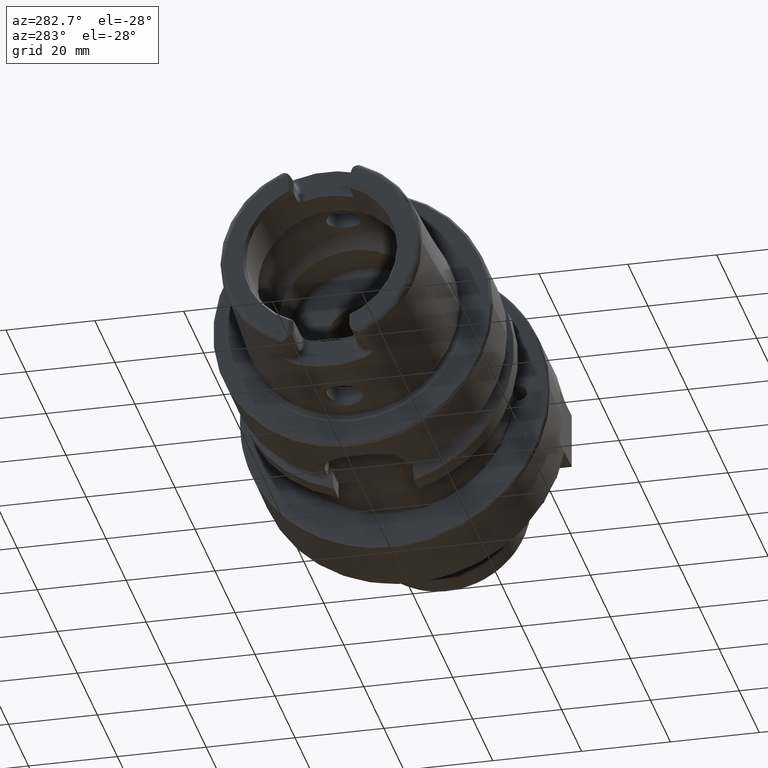
[diagram: clean part render]
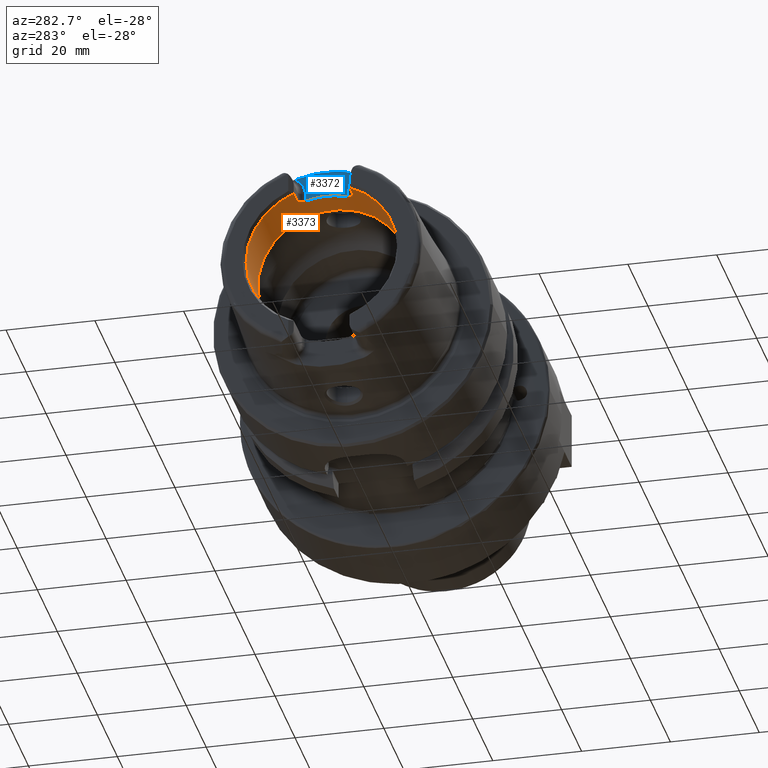
[diagram: same view with the hole feature highlighted: cylindrical wall and planar end face, labeled with their STEP entity ids]
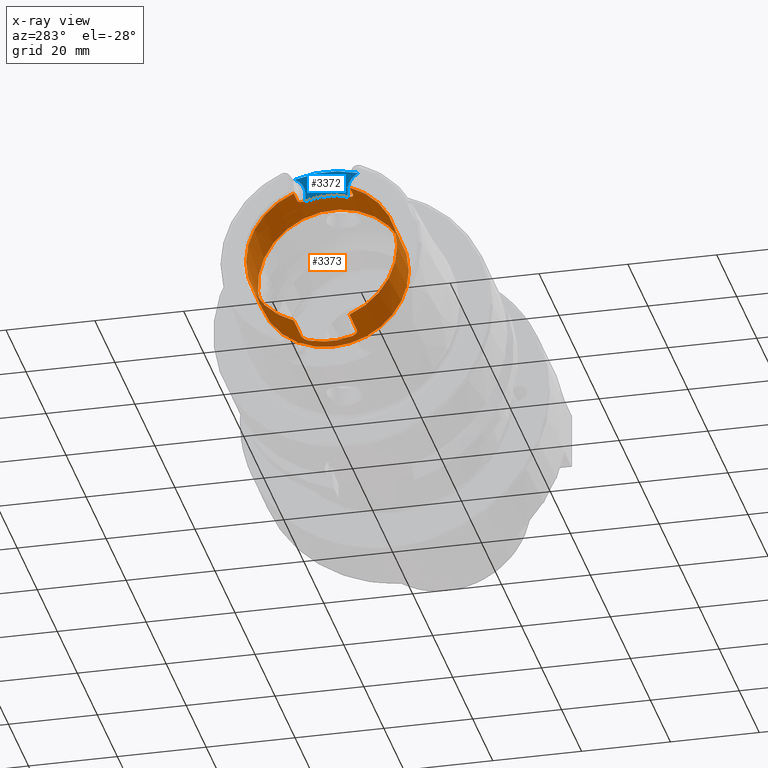
[diagram: x-ray of the same camera — body ghosted, the hole faces saturated]
A machine part, auxiliary view. The highlighted faces form one hole feature of diameter 34 mm: the cylindrical wall (entity #3373, orange) and its adjacent planar end face (entity #3372, blue) — they share a circular edge in the B-rep.
The next image is the same camera in x-ray (body ghosted, the hole faces saturated) — the bore reads through the body.
Wall:
#184=CYLINDRICAL_SURFACE('',#3816,17.);
#253=LINE('',#5592,#453);
#259=LINE('',#5608,#459);
#265=LINE('',#5663,#465);
#269=LINE('',#5729,#469);
#331=LINE('',#6836,#531);
#453=VECTOR('',#4250,10.);
#459=VECTOR('',#4264,10.);
#465=VECTOR('',#4286,10.);
#469=VECTOR('',#4310,10.);
#531=VECTOR('',#4630,17.);
#802=FACE_OUTER_BOUND('',#1011,.T.);
#1011=EDGE_LOOP('',(#2894,#2895,#2896,#2897,#2898,#2899,#2900,#2901,#2902,
#2903,#2904,#2905,#2906,#2907,#2908,#2909,#2910));
#1220=CIRCLE('',#3804,17.);
#1225=CIRCLE('',#3815,17.);
#1226=CIRCLE('',#3817,17.);
#1227=CIRCLE('',#3818,17.);
#1228=CIRCLE('',#3819,17.);
#1229=CIRCLE('',#3820,17.);
#1230=CIRCLE('',#3821,17.);
#1367=B_SPLINE_CURVE_WITH_KNOTS('',3,(#6753,#6754,#6755,#6756,#6757,#6758,
#6759,#6760,#6761,#6762),.UNSPECIFIED.,.F.,.F.,(4,2,2,2,4),(0.229569660485746,
0.289239803007022,0.348909945528297,0.405407845050218,0.46190574457214),
 .UNSPECIFIED.);
#1368=B_SPLINE_CURVE_WITH_KNOTS('',3,(#6771,#6772,#6773,#6774,#6775,#6776,
#6777,#6778,#6779,#6780),.UNSPECIFIED.,.F.,.F.,(4,2,2,2,4),(0.46190574457214,
0.519239917776744,0.576574090981348,0.635410522815223,0.694246954649097),
 .UNSPECIFIED.);
#1369=B_SPLINE_CURVE_WITH_KNOTS('',3,(#6789,#6790,#6791,#6792,#6793,#6794,
#6795,#6796,#6797,#6798),.UNSPECIFIED.,.F.,.F.,(4,2,2,2,4),(0.461905744572139,
0.518403644094061,0.574901543615982,0.634571686137257,0.694241828658533),
 .UNSPECIFIED.);
#1370=B_SPLINE_CURVE_WITH_KNOTS('',3,(#6812,#6813,#6814,#6815,#6816,#6817,
#6818,#6819,#6820,#6821),.UNSPECIFIED.,.F.,.F.,(4,2,2,2,4),(0.229569660485747,
0.289239803007022,0.348909945528297,0.405407845050218,0.46190574457214),
 .UNSPECIFIED.);
#1462=VERTEX_POINT('',#5545);
#1469=VERTEX_POINT('',#5591);
#1472=VERTEX_POINT('',#5598);
#1475=VERTEX_POINT('',#5606);
#1483=VERTEX_POINT('',#5653);
#1486=VERTEX_POINT('',#5661);
#1493=VERTEX_POINT('',#5696);
#1498=VERTEX_POINT('',#5728);
#1605=VERTEX_POINT('',#6751);
#1607=VERTEX_POINT('',#6770);
#1609=VERTEX_POINT('',#6788);
#1610=VERTEX_POINT('',#6805);
#1612=VERTEX_POINT('',#6832);
#1613=VERTEX_POINT('',#6833);
#1614=VERTEX_POINT('',#6835);
#1841=EDGE_CURVE('',#1469,#1462,#253,.T.);
#1849=EDGE_CURVE('',#1472,#1475,#259,.T.);
#1862=EDGE_CURVE('',#1483,#1486,#265,.T.);
#1876=EDGE_CURVE('',#1498,#1493,#269,.T.);
#2042=EDGE_CURVE('',#1605,#1486,#1367,.T.);
#2046=EDGE_CURVE('',#1498,#1607,#1368,.T.);
#2051=EDGE_CURVE('',#1469,#1609,#1369,.T.);
#2055=EDGE_CURVE('',#1610,#1609,#1220,.T.);
#2059=EDGE_CURVE('',#1610,#1475,#1370,.T.);
#2063=EDGE_CURVE('',#1605,#1607,#1225,.T.);
#2064=EDGE_CURVE('',#1612,#1613,#1226,.T.);
#2065=EDGE_CURVE('',#1612,#1614,#331,.T.);
#2066=EDGE_CURVE('',#1483,#1614,#1227,.T.);
#2067=EDGE_CURVE('',#1472,#1493,#1228,.T.);
#2068=EDGE_CURVE('',#1614,#1462,#1229,.T.);
#2069=EDGE_CURVE('',#1613,#1612,#1230,.T.);
#2894=ORIENTED_EDGE('',*,*,#2064,.F.);
#2895=ORIENTED_EDGE('',*,*,#2065,.T.);
#2896=ORIENTED_EDGE('',*,*,#2066,.F.);
#2897=ORIENTED_EDGE('',*,*,#1862,.T.);
#2898=ORIENTED_EDGE('',*,*,#2042,.F.);
#2899=ORIENTED_EDGE('',*,*,#2063,.T.);
#2900=ORIENTED_EDGE('',*,*,#2046,.F.);
#2901=ORIENTED_EDGE('',*,*,#1876,.T.);
#2902=ORIENTED_EDGE('',*,*,#2067,.F.);
#2903=ORIENTED_EDGE('',*,*,#1849,.T.);
#2904=ORIENTED_EDGE('',*,*,#2059,.F.);
#2905=ORIENTED_EDGE('',*,*,#2055,.T.);
#2906=ORIENTED_EDGE('',*,*,#2051,.F.);
#2907=ORIENTED_EDGE('',*,*,#1841,.T.);
#2908=ORIENTED_EDGE('',*,*,#2068,.F.);
#2909=ORIENTED_EDGE('',*,*,#2065,.F.);
#2910=ORIENTED_EDGE('',*,*,#2069,.F.);
#3373=ADVANCED_FACE('',(#802),#184,.F.);
#3804=AXIS2_PLACEMENT_3D('',#6806,#4600,#4601);
#3815=AXIS2_PLACEMENT_3D('',#6830,#4624,#4625);
#3816=AXIS2_PLACEMENT_3D('',#6831,#4626,#4627);
#3817=AXIS2_PLACEMENT_3D('',#6834,#4628,#4629);
#3818=AXIS2_PLACEMENT_3D('',#6837,#4631,#4632);
#3819=AXIS2_PLACEMENT_3D('',#6838,#4633,#4634);
#3820=AXIS2_PLACEMENT_3D('',#6839,#4635,#4636);
#3821=AXIS2_PLACEMENT_3D('',#6840,#4637,#4638);
#4250=DIRECTION('',(-1.,0.,0.));
#4264=DIRECTION('',(1.,0.,0.));
#4286=DIRECTION('',(1.,0.,0.));
#4310=DIRECTION('',(-1.,0.,0.));
#4600=DIRECTION('center_axis',(-1.,0.,0.));
#4601=DIRECTION('ref_axis',(0.,1.,0.));
#4624=DIRECTION('center_axis',(-1.,0.,0.));
#4625=DIRECTION('ref_axis',(0.,1.,0.));
#4626=DIRECTION('center_axis',(-1.,0.,0.));
#4627=DIRECTION('ref_axis',(0.,1.,0.));
#4628=DIRECTION('center_axis',(-1.,0.,0.));
#4629=DIRECTION('ref_axis',(0.,0.,1.));
#4630=DIRECTION('',(-1.,0.,0.));
#4631=DIRECTION('center_axis',(1.,0.,0.));
#4632=DIRECTION('ref_axis',(0.,-1.,0.));
#4633=DIRECTION('center_axis',(1.,0.,0.));
#4634=DIRECTION('ref_axis',(0.,-1.,0.));
#4635=DIRECTION('center_axis',(1.,0.,0.));
#4636=DIRECTION('ref_axis',(0.,-1.,0.));
#4637=DIRECTION('center_axis',(-1.,0.,0.));
#4638=DIRECTION('ref_axis',(0.,0.,1.));
#5545=CARTESIAN_POINT('',(-31.,-6.27,-15.8014904360317));
#5591=CARTESIAN_POINT('',(-23.5,-6.27,-15.8014904360317));
#5592=CARTESIAN_POINT('',(-25.6423502691896,-6.27,-15.8014904360317));
#5598=CARTESIAN_POINT('',(-31.,6.27,-15.8014904360317));
#5606=CARTESIAN_POINT('',(-23.5,6.27,-15.8014904360317));
#5608=CARTESIAN_POINT('',(-25.6423502691896,6.27,-15.8014904360317));
#5653=CARTESIAN_POINT('',(-31.,-6.27,15.8014904360317));
#5661=CARTESIAN_POINT('',(-27.5,-6.27,15.8014904360317));
#5663=CARTESIAN_POINT('',(-25.6423502691896,-6.27,15.8014904360317));
#5696=CARTESIAN_POINT('',(-31.,6.27,15.8014904360317));
#5728=CARTESIAN_POINT('',(-27.5,6.27,15.8014904360317));
#5729=CARTESIAN_POINT('',(-25.6423502691896,6.27,15.8014904360317));
#6751=CARTESIAN_POINT('',(-26.,-4.77,16.3170800083839));
#6753=CARTESIAN_POINT('Ctrl Pts',(-26.,-4.77,16.3170800083839));
#6754=CARTESIAN_POINT('Ctrl Pts',(-26.,-4.96091029208457,16.2612708750845));
#6755=CARTESIAN_POINT('Ctrl Pts',(-26.0385404635846,-5.16378617408596,16.1979610859593));
#6756=CARTESIAN_POINT('Ctrl Pts',(-26.1950909803916,-5.53690543536203,16.0742436586733));
#6757=CARTESIAN_POINT('Ctrl Pts',(-26.3130861154278,-5.70721093092864,16.01400454532));
#6758=CARTESIAN_POINT('Ctrl Pts',(-26.5811791540138,-5.96960590306613,15.9179857910505));
#6759=CARTESIAN_POINT('Ctrl Pts',(-26.7467155703026,-6.082078486584,15.8749745356799));
#6760=CARTESIAN_POINT('Ctrl Pts',(-27.1119229195206,-6.23232125085234,15.8165946761251));
#6761=CARTESIAN_POINT('Ctrl Pts',(-27.3116736682603,-6.27,15.8014904360317));
#6762=CARTESIAN_POINT('Ctrl Pts',(-27.5,-6.27,15.8014904360317));
#6770=CARTESIAN_POINT('',(-26.,4.77,16.3170800083839));
#6771=CARTESIAN_POINT('Ctrl Pts',(-27.5,6.27,15.8014904360317));
#6772=CARTESIAN_POINT('Ctrl Pts',(-27.308886089318,6.27,15.8014904360317));
#6773=CARTESIAN_POINT('Ctrl Pts',(-27.1064099842243,6.23121026569193,15.8170435837256));
#6774=CARTESIAN_POINT('Ctrl Pts',(-26.7371019784685,6.07691823919465,15.8769617281184));
#6775=CARTESIAN_POINT('Ctrl Pts',(-26.5701870418163,5.96150738537594,15.9210500039306));
#6776=CARTESIAN_POINT('Ctrl Pts',(-26.3050641818979,5.69638452545756,16.017853695422));
#6777=CARTESIAN_POINT('Ctrl Pts',(-26.1900212186221,5.52750941197086,16.0774506535614));
#6778=CARTESIAN_POINT('Ctrl Pts',(-26.0374824299787,5.15846789211413,16.1996292802954));
#6779=CARTESIAN_POINT('Ctrl Pts',(-26.,4.95824289522375,16.2620506397863));
#6780=CARTESIAN_POINT('Ctrl Pts',(-26.,4.77,16.3170800083839));
#6788=CARTESIAN_POINT('',(-22.,-4.77,-16.3170800083839));
#6789=CARTESIAN_POINT('Ctrl Pts',(-23.5,-6.27,-15.8014904360317));
#6790=CARTESIAN_POINT('Ctrl Pts',(-23.3116736682603,-6.27,-15.8014904360317));
#6791=CARTESIAN_POINT('Ctrl Pts',(-23.1119229195206,-6.23232125085234,-15.8165946761251));
#6792=CARTESIAN_POINT('Ctrl Pts',(-22.7467155703026,-6.082078486584,-15.8749745356799));
#6793=CARTESIAN_POINT('Ctrl Pts',(-22.5811791540138,-5.96960590306613,-15.9179857910505));
#6794=CARTESIAN_POINT('Ctrl Pts',(-22.3130861154278,-5.70721093092864,-16.01400454532));
#6795=CARTESIAN_POINT('Ctrl Pts',(-22.1950909803916,-5.53690543536204,-16.0742436586733));
#6796=CARTESIAN_POINT('Ctrl Pts',(-22.0385404635846,-5.16378617408596,-16.1979610859593));
#6797=CARTESIAN_POINT('Ctrl Pts',(-22.,-4.96091029208457,-16.2612708750845));
#6798=CARTESIAN_POINT('Ctrl Pts',(-22.,-4.77,-16.3170800083839));
#6805=CARTESIAN_POINT('',(-22.,4.77,-16.3170800083839));
#6806=CARTESIAN_POINT('Origin',(-22.,0.,0.));
#6812=CARTESIAN_POINT('Ctrl Pts',(-22.,4.77,-16.3170800083839));
#6813=CARTESIAN_POINT('Ctrl Pts',(-22.,4.96091029208457,-16.2612708750845));
#6814=CARTESIAN_POINT('Ctrl Pts',(-22.0385404635846,5.16378617408596,-16.1979610859593));
#6815=CARTESIAN_POINT('Ctrl Pts',(-22.1950909803916,5.53690543536204,-16.0742436586733));
#6816=CARTESIAN_POINT('Ctrl Pts',(-22.3130861154278,5.70721093092864,-16.01400454532));
#6817=CARTESIAN_POINT('Ctrl Pts',(-22.5811791540138,5.96960590306613,-15.9179857910505));
#6818=CARTESIAN_POINT('Ctrl Pts',(-22.7467155703026,6.082078486584,-15.8749745356799));
#6819=CARTESIAN_POINT('Ctrl Pts',(-23.1119229195206,6.23232125085234,-15.8165946761251));
#6820=CARTESIAN_POINT('Ctrl Pts',(-23.3116736682603,6.27,-15.8014904360317));
#6821=CARTESIAN_POINT('Ctrl Pts',(-23.5,6.27,-15.8014904360317));
#6830=CARTESIAN_POINT('Origin',(-26.,0.,0.));
#6831=CARTESIAN_POINT('Origin',(-25.6423502691896,0.,0.));
#6832=CARTESIAN_POINT('',(-19.2847005383793,-17.,2.0818995585505E-15));
#6833=CARTESIAN_POINT('',(-19.2847005383793,-2.0818995585505E-15,-17.));
#6834=CARTESIAN_POINT('Origin',(-19.2847005383793,0.,0.));
#6835=CARTESIAN_POINT('',(-31.,-17.,2.0818995585505E-15));
#6836=CARTESIAN_POINT('',(-25.6423502691896,-17.,2.0818995585505E-15));
#6837=CARTESIAN_POINT('Origin',(-31.,0.,0.));
#6838=CARTESIAN_POINT('Origin',(-31.,0.,0.));
#6839=CARTESIAN_POINT('Origin',(-31.,0.,0.));
#6840=CARTESIAN_POINT('Origin',(-19.2847005383793,0.,0.));
End face:
#325=LINE('',#6752,#525);
#326=LINE('',#6781,#526);
#525=VECTOR('',#4566,10.);
#526=VECTOR('',#4579,10.);
#639=PLANE('',#3814);
#801=FACE_OUTER_BOUND('',#1010,.T.);
#1010=EDGE_LOOP('',(#2888,#2889,#2890,#2891,#2892,#2893));
#1168=CIRCLE('',#3694,23.0180260521042);
#1213=CIRCLE('',#3790,4.38);
#1215=CIRCLE('',#3793,4.38);
#1225=CIRCLE('',#3815,17.);
#1510=VERTEX_POINT('',#5943);
#1511=VERTEX_POINT('',#5958);
#1604=VERTEX_POINT('',#6749);
#1605=VERTEX_POINT('',#6751);
#1606=VERTEX_POINT('',#6766);
#1607=VERTEX_POINT('',#6770);
#1894=EDGE_CURVE('',#1510,#1511,#1168,.T.);
#2041=EDGE_CURVE('',#1604,#1605,#325,.T.);
#2043=EDGE_CURVE('',#1511,#1604,#1213,.T.);
#2045=EDGE_CURVE('',#1606,#1510,#1215,.T.);
#2047=EDGE_CURVE('',#1607,#1606,#326,.T.);
#2063=EDGE_CURVE('',#1605,#1607,#1225,.T.);
#2888=ORIENTED_EDGE('',*,*,#2043,.F.);
#2889=ORIENTED_EDGE('',*,*,#1894,.F.);
#2890=ORIENTED_EDGE('',*,*,#2045,.F.);
#2891=ORIENTED_EDGE('',*,*,#2047,.F.);
#2892=ORIENTED_EDGE('',*,*,#2063,.F.);
#2893=ORIENTED_EDGE('',*,*,#2041,.F.);
#3372=ADVANCED_FACE('',(#801),#639,.T.);
#3694=AXIS2_PLACEMENT_3D('',#5959,#4324,#4325);
#3790=AXIS2_PLACEMENT_3D('',#6764,#4569,#4570);
#3793=AXIS2_PLACEMENT_3D('',#6768,#4575,#4576);
#3814=AXIS2_PLACEMENT_3D('',#6829,#4622,#4623);
#3815=AXIS2_PLACEMENT_3D('',#6830,#4624,#4625);
#4324=DIRECTION('center_axis',(1.,0.,0.));
#4325=DIRECTION('ref_axis',(0.,1.,0.));
#4566=DIRECTION('',(0.,-1.58830189502884E-16,-1.));
#4569=DIRECTION('center_axis',(-1.,0.,0.));
#4570=DIRECTION('ref_axis',(0.,0.601141749549969,0.799142413433302));
#4575=DIRECTION('center_axis',(-1.,0.,0.));
#4576=DIRECTION('ref_axis',(0.,-0.601141749549969,0.799142413433301));
#4579=DIRECTION('',(0.,-1.58830189502884E-16,1.));
#4622=DIRECTION('center_axis',(-1.,0.,0.));
#4623=DIRECTION('ref_axis',(0.,0.,1.));
#4624=DIRECTION('center_axis',(-1.,0.,0.));
#4625=DIRECTION('ref_axis',(0.,1.,0.));
#5943=CARTESIAN_POINT('',(-26.,7.14127219004964,21.8822246319466));
#5958=CARTESIAN_POINT('',(-26.,-7.14127219004964,21.8822246319466));
#5959=CARTESIAN_POINT('Origin',(-26.,0.,0.));
#6749=CARTESIAN_POINT('',(-26.,-4.77,17.99));
#6751=CARTESIAN_POINT('',(-26.,-4.77,16.3170800083839));
#6752=CARTESIAN_POINT('',(-26.,-4.77,14.75));
#6764=CARTESIAN_POINT('Origin',(-26.,-9.15,17.99));
#6766=CARTESIAN_POINT('',(-26.,4.77,17.99));
#6768=CARTESIAN_POINT('Origin',(-26.,9.15,17.99));
#6770=CARTESIAN_POINT('',(-26.,4.77,16.3170800083839));
#6781=CARTESIAN_POINT('',(-26.,4.77,18.245));
#6829=CARTESIAN_POINT('Origin',(-26.,-2.22044604925031E-15,18.5));
#6830=CARTESIAN_POINT('Origin',(-26.,0.,0.));